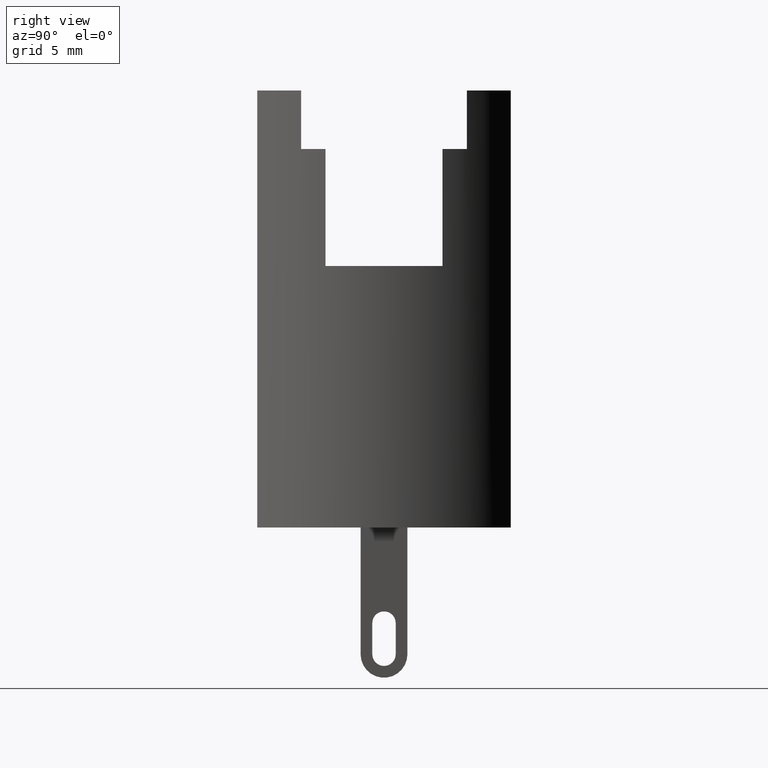
[diagram: clean part render]
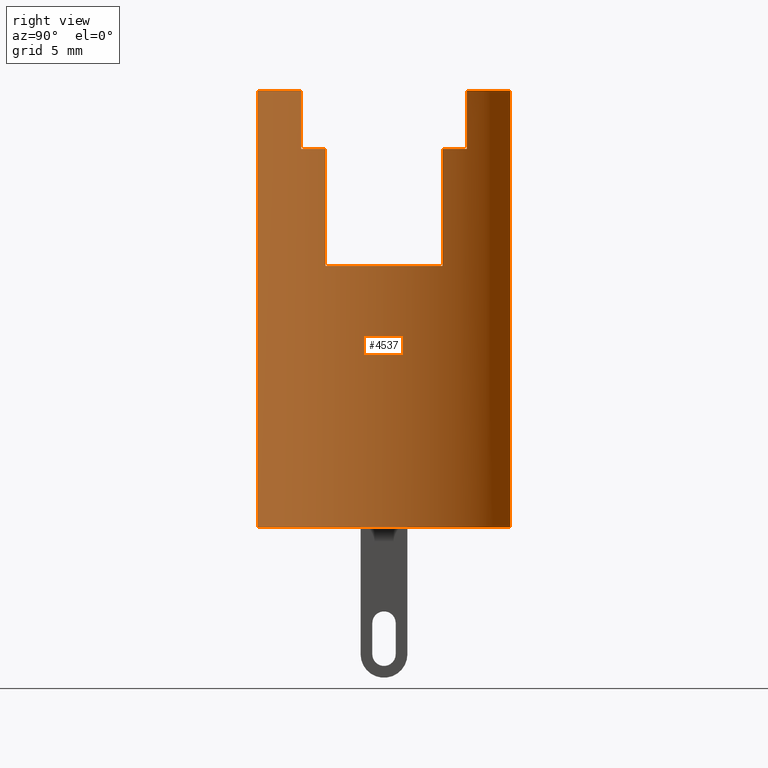
[diagram: same view with one face highlighted and labeled with its STEP entity id]
A machine part, right view. The second image highlights one B-rep face of the part: STEP entity #4537.
In plain terms, the highlighted cylindrical surface (partial cylindrical patch) has radius 9.1 mm, axis along (0, 0, -1).
Its self-contained STEP definition (entity closure, byte-faithful):
#67=CYLINDRICAL_SURFACE('',#4836,9.1);
#140=CIRCLE('',#4820,9.1);
#144=CIRCLE('',#4826,9.1);
#148=CIRCLE('',#4834,9.1);
#150=CIRCLE('',#4837,9.1);
#151=CIRCLE('',#4838,9.1);
#152=CIRCLE('',#4839,9.1);
#373=FACE_OUTER_BOUND('',#612,.T.);
#612=EDGE_LOOP('',(#3865,#3866,#3867,#3868,#3869,#3870,#3871,#3872,#3873,
#3874,#3875,#3876));
#1169=LINE('',#7229,#1741);
#1181=LINE('',#7273,#1753);
#1185=LINE('',#7285,#1757);
#1186=LINE('',#7287,#1758);
#1187=LINE('',#7291,#1759);
#1188=LINE('',#7295,#1760);
#1741=VECTOR('',#5901,10.);
#1753=VECTOR('',#5947,10.);
#1757=VECTOR('',#5959,10.);
#1758=VECTOR('',#5960,10.);
#1759=VECTOR('',#5963,10.);
#1760=VECTOR('',#5966,10.);
#2165=VERTEX_POINT('',#7227);
#2166=VERTEX_POINT('',#7228);
#2171=VERTEX_POINT('',#7242);
#2175=VERTEX_POINT('',#7254);
#2181=VERTEX_POINT('',#7272);
#2183=VERTEX_POINT('',#7278);
#2185=VERTEX_POINT('',#7284);
#2186=VERTEX_POINT('',#7286);
#2187=VERTEX_POINT('',#7288);
#2188=VERTEX_POINT('',#7290);
#2189=VERTEX_POINT('',#7292);
#2190=VERTEX_POINT('',#7294);
#2777=EDGE_CURVE('',#2165,#2166,#1169,.T.);
#2784=EDGE_CURVE('',#2166,#2171,#140,.T.);
#2790=EDGE_CURVE('',#2175,#2165,#144,.T.);
#2799=EDGE_CURVE('',#2181,#2175,#1181,.T.);
#2802=EDGE_CURVE('',#2183,#2181,#148,.T.);
#2805=EDGE_CURVE('',#2185,#2183,#1185,.T.);
#2806=EDGE_CURVE('',#2171,#2186,#1186,.T.);
#2807=EDGE_CURVE('',#2187,#2186,#150,.T.);
#2808=EDGE_CURVE('',#2187,#2188,#1187,.T.);
#2809=EDGE_CURVE('',#2188,#2189,#151,.T.);
#2810=EDGE_CURVE('',#2190,#2189,#1188,.T.);
#2811=EDGE_CURVE('',#2185,#2190,#152,.T.);
#3865=ORIENTED_EDGE('',*,*,#2805,.T.);
#3866=ORIENTED_EDGE('',*,*,#2802,.T.);
#3867=ORIENTED_EDGE('',*,*,#2799,.T.);
#3868=ORIENTED_EDGE('',*,*,#2790,.T.);
#3869=ORIENTED_EDGE('',*,*,#2777,.T.);
#3870=ORIENTED_EDGE('',*,*,#2784,.T.);
#3871=ORIENTED_EDGE('',*,*,#2806,.T.);
#3872=ORIENTED_EDGE('',*,*,#2807,.F.);
#3873=ORIENTED_EDGE('',*,*,#2808,.T.);
#3874=ORIENTED_EDGE('',*,*,#2809,.T.);
#3875=ORIENTED_EDGE('',*,*,#2810,.F.);
#3876=ORIENTED_EDGE('',*,*,#2811,.F.);
#4537=ADVANCED_FACE('',(#373),#67,.T.);
#4820=AXIS2_PLACEMENT_3D('',#7243,#5914,#5915);
#4826=AXIS2_PLACEMENT_3D('',#7255,#5928,#5929);
#4834=AXIS2_PLACEMENT_3D('',#7279,#5952,#5953);
#4836=AXIS2_PLACEMENT_3D('',#7283,#5957,#5958);
#4837=AXIS2_PLACEMENT_3D('',#7289,#5961,#5962);
#4838=AXIS2_PLACEMENT_3D('',#7293,#5964,#5965);
#4839=AXIS2_PLACEMENT_3D('',#7296,#5967,#5968);
#5901=DIRECTION('',(-2.01228126592556E-16,-3.88578058618806E-16,1.));
#5914=DIRECTION('center_axis',(2.01228126592556E-16,3.88578058618806E-16,
-1.));
#5915=DIRECTION('ref_axis',(-0.699854212223764,-0.714285714285716,-4.18386108169987E-16));
#5928=DIRECTION('center_axis',(2.01228126592556E-16,3.88578058618806E-16,
-1.));
#5929=DIRECTION('ref_axis',(-0.699854212223764,-0.714285714285716,-4.18386108169987E-16));
#5947=DIRECTION('',(2.01228126592556E-16,3.88578058618806E-16,-1.));
#5952=DIRECTION('center_axis',(2.01228126592556E-16,3.88578058618806E-16,
-1.));
#5953=DIRECTION('ref_axis',(-0.699854212223764,-0.714285714285716,-4.18386108169987E-16));
#5957=DIRECTION('center_axis',(2.01228126592556E-16,3.88578058618806E-16,
-1.));
#5958=DIRECTION('ref_axis',(-0.699854212223764,-0.714285714285716,-4.18386108169987E-16));
#5959=DIRECTION('',(2.01228126592556E-16,3.88578058618806E-16,-1.));
#5960=DIRECTION('',(-2.01228126592556E-16,-3.88578058618806E-16,1.));
#5961=DIRECTION('center_axis',(-2.01228126592556E-16,-3.88578058618806E-16,
1.));
#5962=DIRECTION('ref_axis',(-0.699854212223764,-0.714285714285716,-4.18386108169987E-16));
#5963=DIRECTION('',(2.01228126592556E-16,3.88578058618806E-16,-1.));
#5964=DIRECTION('center_axis',(-2.01228126592556E-16,-3.88578058618806E-16,
1.));
#5965=DIRECTION('ref_axis',(-0.699854212223764,-0.714285714285716,-4.18386108169987E-16));
#5966=DIRECTION('',(2.01228126592556E-16,3.88578058618806E-16,-1.));
#5967=DIRECTION('center_axis',(-2.01228126592556E-16,-3.88578058618806E-16,
1.));
#5968=DIRECTION('ref_axis',(-0.699854212223764,-0.714285714285716,-4.18386108169987E-16));
#7227=CARTESIAN_POINT('',(8.67877571153303,-2.99999999999999,13.4));
#7228=CARTESIAN_POINT('',(8.67877571153303,-2.99999999999999,19.4));
#7229=CARTESIAN_POINT('',(8.67877571153303,-2.99999999999999,22.4));
#7242=CARTESIAN_POINT('',(8.13408419381028,-4.24999999999999,19.4));
#7243=CARTESIAN_POINT('Origin',(0.0875010680357041,-7.35113289072591E-15,
19.4));
#7254=CARTESIAN_POINT('',(8.67877571153302,3.00000000000002,13.4));
#7255=CARTESIAN_POINT('Origin',(0.0875010680357053,-5.01966453901307E-15,
13.4));
#7272=CARTESIAN_POINT('',(8.67877571153302,3.00000000000001,19.4));
#7273=CARTESIAN_POINT('',(8.67877571153302,3.00000000000001,22.4));
#7278=CARTESIAN_POINT('',(8.13408419381026,4.25000000000001,19.4));
#7279=CARTESIAN_POINT('Origin',(0.0875010680357041,-7.35113289072591E-15,
19.4));
#7283=CARTESIAN_POINT('Origin',(0.0875010680357035,-8.51686706658232E-15,
22.4));
#7284=CARTESIAN_POINT('',(8.13408419381026,4.25000000000001,22.4));
#7285=CARTESIAN_POINT('',(8.13408419381026,4.25000000000001,22.4));
#7286=CARTESIAN_POINT('',(8.13408419381028,-4.24999999999999,22.4));
#7287=CARTESIAN_POINT('',(8.13408419381028,-4.24999999999999,22.4));
#7288=CARTESIAN_POINT('',(6.45617439927198,-6.5,22.4));
#7289=CARTESIAN_POINT('Origin',(0.0875010680357035,-8.51686706658232E-15,
22.4));
#7290=CARTESIAN_POINT('',(6.45617439927198,-6.49999999999999,3.21429859679871E-15));
#7291=CARTESIAN_POINT('',(6.45617439927198,-6.5,22.4));
#7292=CARTESIAN_POINT('',(6.45617439927196,6.50000000000001,8.26581335884318E-15));
#7293=CARTESIAN_POINT('Origin',(0.087501068035708,1.87281446478928E-16,
4.4584997744963E-15));
#7294=CARTESIAN_POINT('',(6.45617439927195,6.50000000000001,22.4));
#7295=CARTESIAN_POINT('',(6.45617439927195,6.50000000000001,22.4));
#7296=CARTESIAN_POINT('Origin',(0.0875010680357035,-8.51686706658232E-15,
22.4));